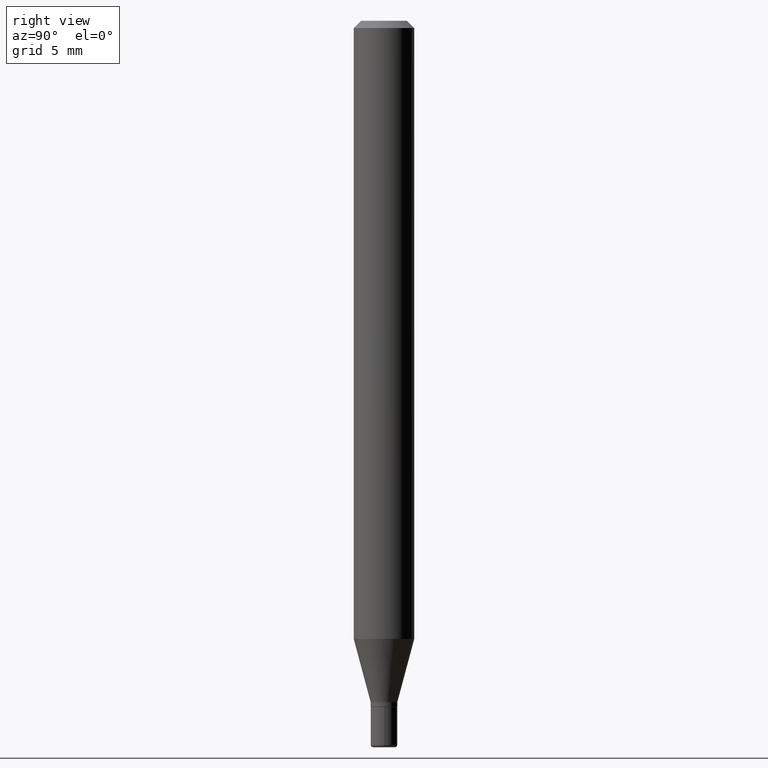
[diagram: clean part render]
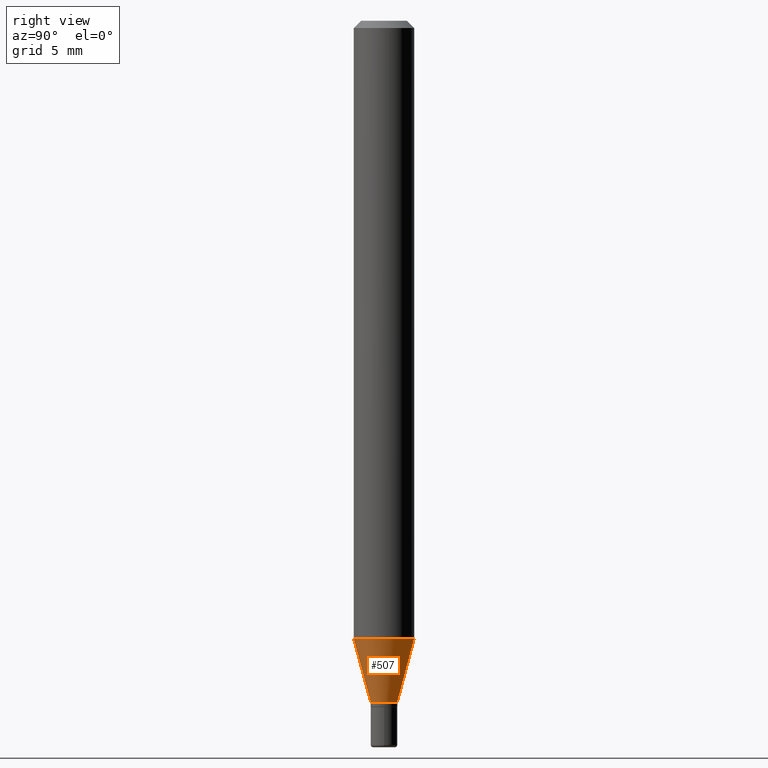
[diagram: same view with one face highlighted and labeled with its STEP entity id]
A machine part, right view. The second image highlights one B-rep face of the part: STEP entity #507.
In plain terms, the highlighted conical surface has half-angle 15 deg.
Its self-contained STEP definition (entity closure, byte-faithful):
#2 = DIRECTION ( 'NONE',  ( -2.445430594000756604E-29, 3.491536060866079986E-15, 1.000000000000000000 ) ) ;
#4 = CIRCLE ( 'NONE', #404, 0.02750000000000010075 ) ;
#8 = CARTESIAN_POINT ( 'NONE',  ( 3.440720845759065849E-29, -4.912591237638575836E-15, -1.407000000000000250 ) ) ;
#25 = VERTEX_POINT ( 'NONE', #324 ) ;
#39 = EDGE_CURVE ( 'NONE', #351, #338, #4, .T. ) ;
#46 = CARTESIAN_POINT ( 'NONE',  ( 1.953992523340626318E-16, 0.02749999999999518802, -1.407000000000000250 ) ) ;
#71 = DIRECTION ( 'NONE',  ( -6.982962677686265922E-15, -1.000000000000000000, 4.370956789862821150E-15 ) ) ;
#78 = CARTESIAN_POINT ( 'NONE',  ( 3.440720845759065849E-29, -4.912591237638575836E-15, -1.407000000000000250 ) ) ;
#116 = LINE ( 'NONE', #361, #125 ) ;
#123 = DIRECTION ( 'NONE',  ( -6.982962677686265922E-15, -1.000000000000000000, 0.000000000000000000 ) ) ;
#125 = VECTOR ( 'NONE', #280, 39.37007874015748854 ) ;
#132 = VECTOR ( 'NONE', #214, 39.37007874015748143 ) ;
#134 = ORIENTED_EDGE ( 'NONE', *, *, #427, .F. ) ;
#147 = CARTESIAN_POINT ( 'NONE',  ( 3.121294352947271475E-29, -4.456520588492188599E-15, -1.276378221735090079 ) ) ;
#165 = LINE ( 'NONE', #46, #132 ) ;
#178 = ORIENTED_EDGE ( 'NONE', *, *, #496, .T. ) ;
#214 = DIRECTION ( 'NONE',  ( 1.839019923739596371E-15, 0.2588190451025244032, 0.9659258262890673130 ) ) ;
#243 = CARTESIAN_POINT ( 'NONE',  ( 3.197442310920783026E-16, 0.02749999999999518802, -1.407000000000000250 ) ) ;
#249 = DIRECTION ( 'NONE',  ( -6.982962677686265922E-15, -1.000000000000000000, 0.000000000000000000 ) ) ;
#266 = VERTEX_POINT ( 'NONE', #273 ) ;
#273 = CARTESIAN_POINT ( 'NONE',  ( -4.364351673553605587E-16, -0.06250000000000449640, -1.276378221735089857 ) ) ;
#280 = DIRECTION ( 'NONE',  ( -1.807323732225326195E-15, -0.2588190451025176309, 0.9659258262890690894 ) ) ;
#316 = EDGE_CURVE ( 'NONE', #266, #25, #504, .T. ) ;
#322 = AXIS2_PLACEMENT_3D ( 'NONE', #8, #330, #123 ) ;
#323 = CARTESIAN_POINT ( 'NONE',  ( -1.920314736363385959E-16, -0.02750000000000501349, -1.407000000000000250 ) ) ;
#324 = CARTESIAN_POINT ( 'NONE',  ( 4.440892098500935790E-16, 0.06249999999999551747, -1.276378221735090301 ) ) ;
#330 = DIRECTION ( 'NONE',  ( -2.445430594000756604E-29, 3.491536060866079986E-15, 1.000000000000000000 ) ) ;
#338 = VERTEX_POINT ( 'NONE', #243 ) ;
#341 = ORIENTED_EDGE ( 'NONE', *, *, #39, .T. ) ;
#343 = EDGE_LOOP ( 'NONE', ( #341, #178, #515, #134 ) ) ;
#351 = VERTEX_POINT ( 'NONE', #323 ) ;
#361 = CARTESIAN_POINT ( 'NONE',  ( -1.920314736363385959E-16, -0.02750000000000501349, -1.407000000000000250 ) ) ;
#390 = DIRECTION ( 'NONE',  ( -2.445430594000756604E-29, 3.491536060866079986E-15, 1.000000000000000000 ) ) ;
#398 = AXIS2_PLACEMENT_3D ( 'NONE', #147, #390, #71 ) ;
#404 = AXIS2_PLACEMENT_3D ( 'NONE', #78, #2, #249 ) ;
#427 = EDGE_CURVE ( 'NONE', #351, #266, #116, .T. ) ;
#451 = CONICAL_SURFACE ( 'NONE', #322, 0.02750000000000010075, 0.2617993877991496854 ) ;
#480 = FACE_OUTER_BOUND ( 'NONE', #343, .T. ) ;
#496 = EDGE_CURVE ( 'NONE', #338, #25, #165, .T. ) ;
#504 = CIRCLE ( 'NONE', #398, 0.06250000000000000000 ) ;
#507 = ADVANCED_FACE ( 'NONE', ( #480 ), #451, .T. ) ;
#515 = ORIENTED_EDGE ( 'NONE', *, *, #316, .F. ) ;